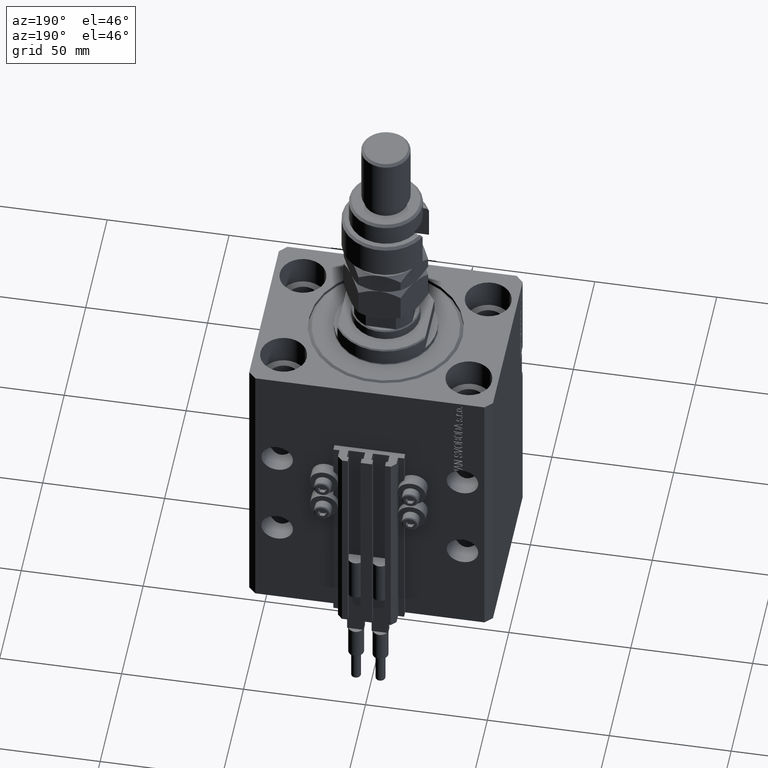
[diagram: clean part render]
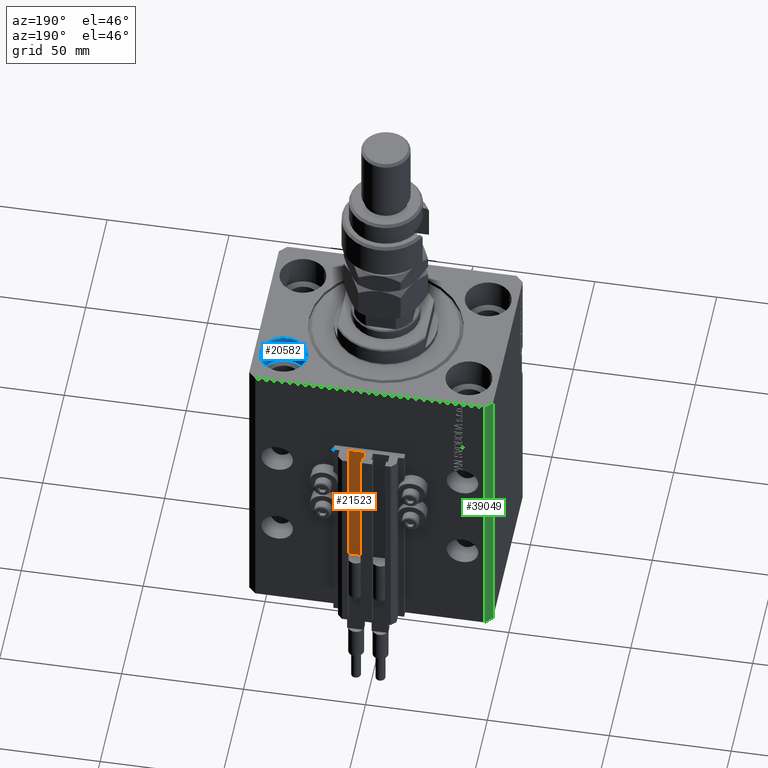
[diagram: same view with three faces highlighted in distinct colors, each labeled with its STEP entity id]
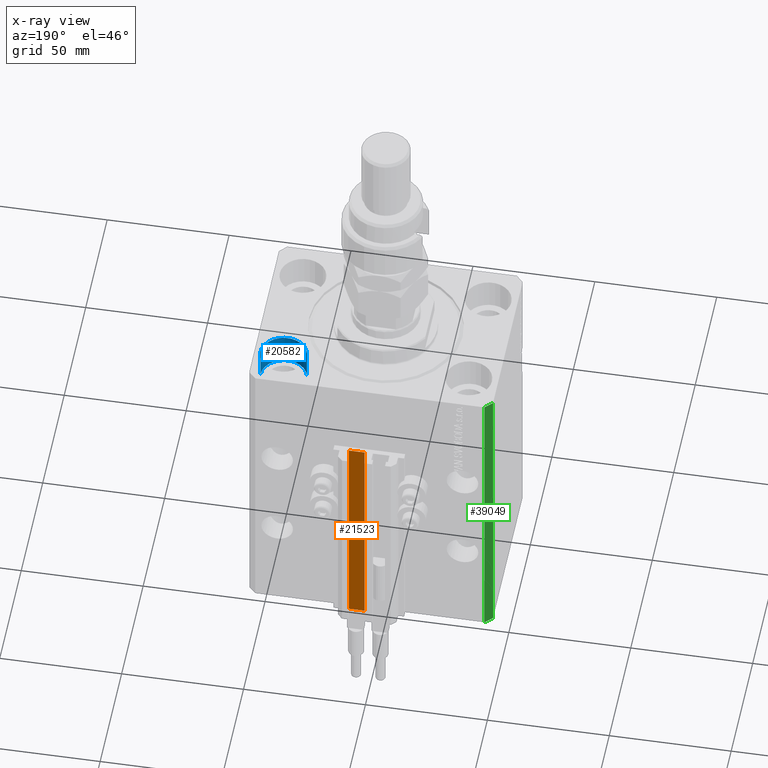
[diagram: x-ray of the same camera — body ghosted, the three highlighted faces saturated]
A machine part, auxiliary view with three faces highlighted in distinct colors.
The next image is the same camera in x-ray (body ghosted, the three faces saturated) — at least one of them is partly hidden behind the body in this view.
Their STEP definitions:

[orange] entity #21523 — the highlighted planar face has unit normal (-0, 1, 0).
#924 = DIRECTION ( 'NONE',  ( -1.000000000000000000, -1.084202172485504828E-15, 0.000000000000000000 ) ) ;
#5254 = EDGE_CURVE ( 'NONE', #12520, #19679, #46037, .T. ) ;
#6127 = VERTEX_POINT ( 'NONE', #27441 ) ;
#6233 = LINE ( 'NONE', #26683, #18369 ) ;
#6402 = ORIENTED_EDGE ( 'NONE', *, *, #27383, .T. ) ;
#6821 = CARTESIAN_POINT ( 'NONE',  ( 8.199999999999999289, 39.50000000000000711, -125.0000000000000000 ) ) ;
#7955 = DIRECTION ( 'NONE',  ( -1.000000000000000000, -1.084202172485504828E-15, 0.000000000000000000 ) ) ;
#8015 = DIRECTION ( 'NONE',  ( 0.000000000000000000, 0.000000000000000000, 1.000000000000000000 ) ) ;
#8467 = CARTESIAN_POINT ( 'NONE',  ( 8.199999999999999289, 39.50000000000000711, -125.0000000000000000 ) ) ;
#8866 = VECTOR ( 'NONE', #924, 1000.000000000000000 ) ;
#12520 = VERTEX_POINT ( 'NONE', #22260 ) ;
#15087 = ORIENTED_EDGE ( 'NONE', *, *, #31946, .T. ) ;
#15284 = EDGE_CURVE ( 'NONE', #6127, #12520, #6233, .T. ) ;
#17581 = CARTESIAN_POINT ( 'NONE',  ( 1.800000000000000933, 39.50000000000000000, -33.00000000000000000 ) ) ;
#17747 = VECTOR ( 'NONE', #8015, 1000.000000000000000 ) ;
#18369 = VECTOR ( 'NONE', #26936, 1000.000000000000000 ) ;
#19679 = VERTEX_POINT ( 'NONE', #17581 ) ;
#19739 = DIRECTION ( 'NONE',  ( -1.084202172485504828E-15, 1.000000000000000000, 0.000000000000000000 ) ) ;
#21523 = ADVANCED_FACE ( 'NONE', ( #48585 ), #36249, .T. ) ;
#22065 = VECTOR ( 'NONE', #34088, 1000.000000000000000 ) ;
#22260 = CARTESIAN_POINT ( 'NONE',  ( 8.199999999999999289, 39.50000000000000711, -33.00000000000000000 ) ) ;
#23745 = CARTESIAN_POINT ( 'NONE',  ( 1.800000000000000933, 39.50000000000000000, -125.0000000000000000 ) ) ;
#26683 = CARTESIAN_POINT ( 'NONE',  ( 8.199999999999999289, 39.50000000000000711, -125.0000000000000000 ) ) ;
#26936 = DIRECTION ( 'NONE',  ( 0.000000000000000000, 0.000000000000000000, 1.000000000000000000 ) ) ;
#27383 = EDGE_CURVE ( 'NONE', #6127, #46963, #50106, .T. ) ;
#27441 = CARTESIAN_POINT ( 'NONE',  ( 8.199999999999999289, 39.50000000000000711, -125.0000000000000000 ) ) ;
#31946 = EDGE_CURVE ( 'NONE', #46963, #19679, #35790, .T. ) ;
#33164 = CARTESIAN_POINT ( 'NONE',  ( 8.199999999999999289, 39.50000000000000711, -33.00000000000000000 ) ) ;
#33953 = CARTESIAN_POINT ( 'NONE',  ( 1.800000000000000933, 39.50000000000000000, -125.0000000000000000 ) ) ;
#34088 = DIRECTION ( 'NONE',  ( -1.000000000000000000, -1.084202172485504828E-15, 0.000000000000000000 ) ) ;
#35790 = LINE ( 'NONE', #23745, #17747 ) ;
#36205 = AXIS2_PLACEMENT_3D ( 'NONE', #8467, #19739, #7955 ) ;
#36249 = PLANE ( 'NONE',  #36205 ) ;
#36847 = ORIENTED_EDGE ( 'NONE', *, *, #5254, .F. ) ;
#42663 = ORIENTED_EDGE ( 'NONE', *, *, #15284, .F. ) ;
#46037 = LINE ( 'NONE', #33164, #8866 ) ;
#46963 = VERTEX_POINT ( 'NONE', #33953 ) ;
#48585 = FACE_OUTER_BOUND ( 'NONE', #49198, .T. ) ;
#49198 = EDGE_LOOP ( 'NONE', ( #36847, #42663, #6402, #15087 ) ) ;
#50106 = LINE ( 'NONE', #6821, #22065 ) ;

[blue] entity #20582 — the highlighted cylindrical surface (edge-blend (fillet) strip) has radius 9.5 mm, axis along (0, 0, 1).
#67 = EDGE_LOOP ( 'NONE', ( #27291, #19595, #41862, #47553 ) ) ;
#951 = CARTESIAN_POINT ( 'NONE',  ( 38.00000000000000711, 22.50000000000001421, 0.000000000000000000 ) ) ;
#4895 = DIRECTION ( 'NONE',  ( 0.000000000000000000, 0.000000000000000000, 1.000000000000000000 ) ) ;
#5001 = CARTESIAN_POINT ( 'NONE',  ( 38.00000000000000711, 22.50000000000001421, -13.00000000000000000 ) ) ;
#8372 = VECTOR ( 'NONE', #15901, 1000.000000000000000 ) ;
#8888 = CARTESIAN_POINT ( 'NONE',  ( 28.50000000000000355, 22.50000000000001421, 0.000000000000000000 ) ) ;
#10571 = VERTEX_POINT ( 'NONE', #44591 ) ;
#11066 = AXIS2_PLACEMENT_3D ( 'NONE', #31018, #34710, #18456 ) ;
#14269 = CYLINDRICAL_SURFACE ( 'NONE', #11066, 9.500000000000001776 ) ;
#14320 = DIRECTION ( 'NONE',  ( -0.000000000000000000, -0.000000000000000000, 1.000000000000000000 ) ) ;
#15901 = DIRECTION ( 'NONE',  ( -0.000000000000000000, -0.000000000000000000, 1.000000000000000000 ) ) ;
#16653 = EDGE_CURVE ( 'NONE', #51355, #31783, #32152, .T. ) ;
#17803 = VERTEX_POINT ( 'NONE', #8888 ) ;
#17983 = DIRECTION ( 'NONE',  ( 1.000000000000000000, 0.000000000000000000, 0.000000000000000000 ) ) ;
#17998 = CARTESIAN_POINT ( 'NONE',  ( 47.50000000000000711, 22.50000000000001421, 0.000000000000000000 ) ) ;
#18456 = DIRECTION ( 'NONE',  ( 1.000000000000000000, 0.000000000000000000, 0.000000000000000000 ) ) ;
#19595 = ORIENTED_EDGE ( 'NONE', *, *, #41701, .T. ) ;
#20582 = ADVANCED_FACE ( 'NONE', ( #23158 ), #14269, .F. ) ;
#20997 = DIRECTION ( 'NONE',  ( 0.000000000000000000, 0.000000000000000000, 1.000000000000000000 ) ) ;
#22546 = AXIS2_PLACEMENT_3D ( 'NONE', #5001, #20997, #25184 ) ;
#23158 = FACE_OUTER_BOUND ( 'NONE', #67, .T. ) ;
#24665 = CIRCLE ( 'NONE', #31357, 9.500000000000001776 ) ;
#25184 = DIRECTION ( 'NONE',  ( 1.000000000000000000, 0.000000000000000000, 0.000000000000000000 ) ) ;
#26735 = CIRCLE ( 'NONE', #22546, 9.500000000000001776 ) ;
#27291 = ORIENTED_EDGE ( 'NONE', *, *, #51620, .F. ) ;
#31018 = CARTESIAN_POINT ( 'NONE',  ( 38.00000000000000711, 22.50000000000001421, -13.00000000000000000 ) ) ;
#31357 = AXIS2_PLACEMENT_3D ( 'NONE', #951, #4895, #17983 ) ;
#31783 = VERTEX_POINT ( 'NONE', #17998 ) ;
#32152 = LINE ( 'NONE', #35825, #8372 ) ;
#33874 = VECTOR ( 'NONE', #14320, 1000.000000000000000 ) ;
#34710 = DIRECTION ( 'NONE',  ( -0.000000000000000000, -0.000000000000000000, 1.000000000000000000 ) ) ;
#35263 = CARTESIAN_POINT ( 'NONE',  ( 28.50000000000000355, 22.50000000000001421, -13.00000000000000000 ) ) ;
#35825 = CARTESIAN_POINT ( 'NONE',  ( 47.50000000000000711, 22.50000000000001421, -13.00000000000000000 ) ) ;
#38101 = CARTESIAN_POINT ( 'NONE',  ( 47.50000000000000711, 22.50000000000001421, -13.00000000000000000 ) ) ;
#39223 = LINE ( 'NONE', #35263, #33874 ) ;
#41448 = EDGE_CURVE ( 'NONE', #17803, #31783, #24665, .T. ) ;
#41701 = EDGE_CURVE ( 'NONE', #10571, #17803, #39223, .T. ) ;
#41862 = ORIENTED_EDGE ( 'NONE', *, *, #41448, .T. ) ;
#44591 = CARTESIAN_POINT ( 'NONE',  ( 28.50000000000000355, 22.50000000000001421, -13.00000000000000000 ) ) ;
#47553 = ORIENTED_EDGE ( 'NONE', *, *, #16653, .F. ) ;
#51355 = VERTEX_POINT ( 'NONE', #38101 ) ;
#51620 = EDGE_CURVE ( 'NONE', #10571, #51355, #26735, .T. ) ;

[green] entity #39049 — the highlighted planar face has unit normal (-0.7071, 0.7071, 0).
#1837 = VECTOR ( 'NONE', #31091, 1000.000000000000000 ) ;
#5592 = VERTEX_POINT ( 'NONE', #49386 ) ;
#7108 = LINE ( 'NONE', #43549, #22706 ) ;
#8855 = ORIENTED_EDGE ( 'NONE', *, *, #24755, .T. ) ;
#10028 = DIRECTION ( 'NONE',  ( -0.7071067811865483499, -0.7071067811865466846, 0.000000000000000000 ) ) ;
#11644 = DIRECTION ( 'NONE',  ( -0.7071067811865483499, -0.7071067811865466846, 0.000000000000000000 ) ) ;
#11951 = LINE ( 'NONE', #15364, #1837 ) ;
#13735 = EDGE_CURVE ( 'NONE', #5592, #19288, #18681, .T. ) ;
#15364 = CARTESIAN_POINT ( 'NONE',  ( -50.00000000000001421, 34.50000000000000000, -125.0000000000000000 ) ) ;
#15564 = DIRECTION ( 'NONE',  ( -0.7071067811865466846, 0.7071067811865483499, 0.000000000000000000 ) ) ;
#16418 = CARTESIAN_POINT ( 'NONE',  ( -47.00000000000001421, 37.50000000000000000, -125.0000000000000000 ) ) ;
#18681 = LINE ( 'NONE', #42284, #38450 ) ;
#19288 = VERTEX_POINT ( 'NONE', #48125 ) ;
#20031 = EDGE_CURVE ( 'NONE', #28065, #5592, #23351, .T. ) ;
#20186 = DIRECTION ( 'NONE',  ( -0.7071067811865483499, -0.7071067811865466846, 0.000000000000000000 ) ) ;
#20961 = VERTEX_POINT ( 'NONE', #24967 ) ;
#22706 = VECTOR ( 'NONE', #20186, 1000.000000000000000 ) ;
#23092 = DIRECTION ( 'NONE',  ( 0.000000000000000000, 0.000000000000000000, 1.000000000000000000 ) ) ;
#23351 = LINE ( 'NONE', #48958, #45367 ) ;
#23753 = ORIENTED_EDGE ( 'NONE', *, *, #29860, .T. ) ;
#24755 = EDGE_CURVE ( 'NONE', #20961, #19288, #11951, .T. ) ;
#24967 = CARTESIAN_POINT ( 'NONE',  ( -50.00000000000001421, 34.50000000000000000, -125.0000000000000000 ) ) ;
#27624 = CARTESIAN_POINT ( 'NONE',  ( -47.00000000000001421, 37.50000000000000000, -125.0000000000000000 ) ) ;
#28065 = VERTEX_POINT ( 'NONE', #16418 ) ;
#29860 = EDGE_CURVE ( 'NONE', #28065, #20961, #7108, .T. ) ;
#31091 = DIRECTION ( 'NONE',  ( 0.000000000000000000, 0.000000000000000000, 1.000000000000000000 ) ) ;
#33799 = AXIS2_PLACEMENT_3D ( 'NONE', #27624, #15564, #11644 ) ;
#35491 = PLANE ( 'NONE',  #33799 ) ;
#37398 = ORIENTED_EDGE ( 'NONE', *, *, #13735, .F. ) ;
#38450 = VECTOR ( 'NONE', #10028, 1000.000000000000000 ) ;
#39049 = ADVANCED_FACE ( 'NONE', ( #48088 ), #35491, .T. ) ;
#42284 = CARTESIAN_POINT ( 'NONE',  ( -47.00000000000001421, 37.50000000000000000, 0.000000000000000000 ) ) ;
#43549 = CARTESIAN_POINT ( 'NONE',  ( -47.00000000000001421, 37.50000000000000000, -125.0000000000000000 ) ) ;
#44450 = ORIENTED_EDGE ( 'NONE', *, *, #20031, .F. ) ;
#45096 = EDGE_LOOP ( 'NONE', ( #37398, #44450, #23753, #8855 ) ) ;
#45367 = VECTOR ( 'NONE', #23092, 1000.000000000000000 ) ;
#48088 = FACE_OUTER_BOUND ( 'NONE', #45096, .T. ) ;
#48125 = CARTESIAN_POINT ( 'NONE',  ( -50.00000000000001421, 34.50000000000000000, 0.000000000000000000 ) ) ;
#48958 = CARTESIAN_POINT ( 'NONE',  ( -47.00000000000001421, 37.50000000000000000, -125.0000000000000000 ) ) ;
#49386 = CARTESIAN_POINT ( 'NONE',  ( -47.00000000000001421, 37.50000000000000000, 0.000000000000000000 ) ) ;